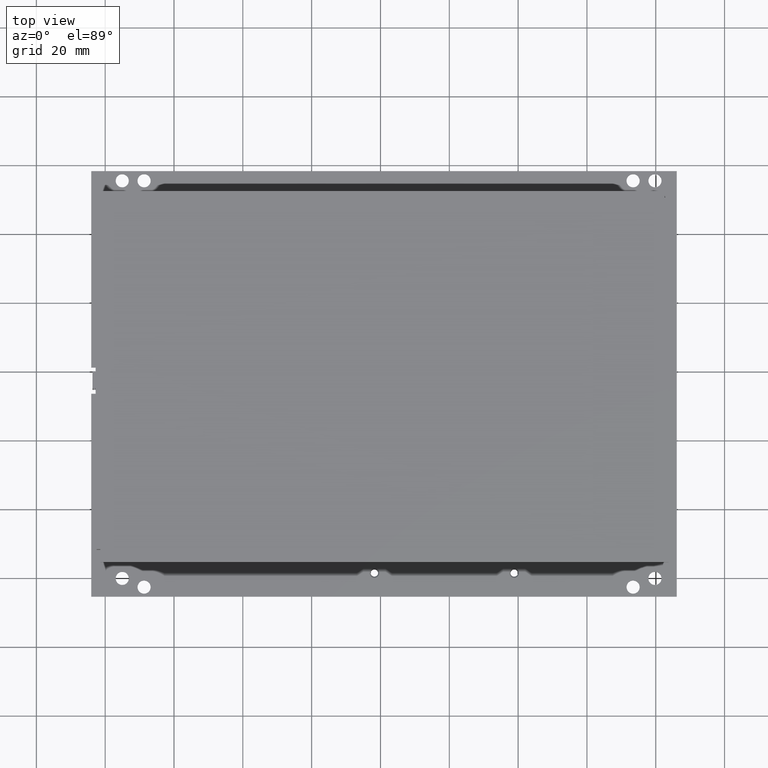
[diagram: clean part render]
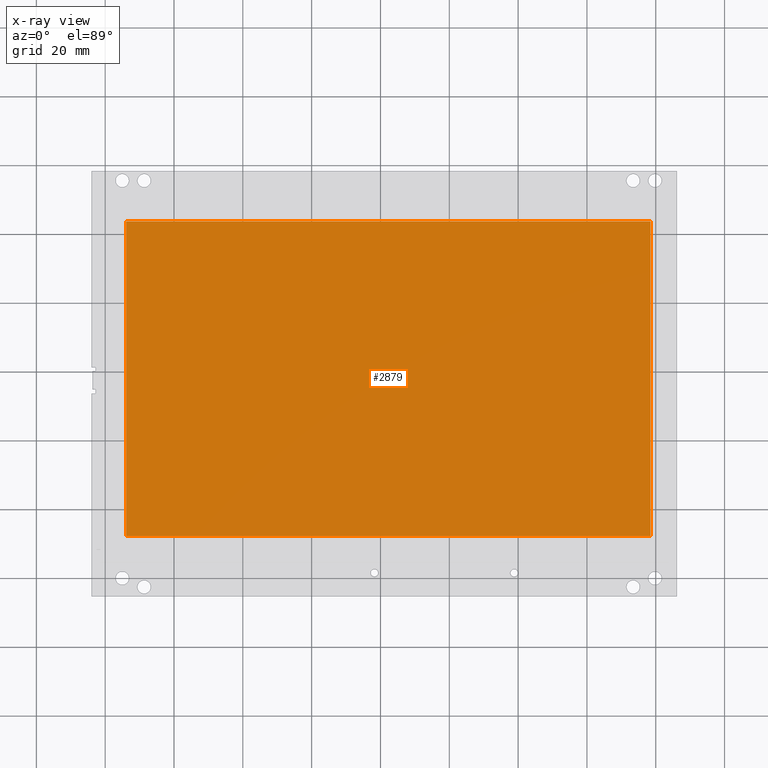
[diagram: x-ray — body ghosted, one internal face saturated and labeled with its STEP entity id]
A machine part, top view, then the same camera in x-ray: the body is ghosted and one INTERNAL B-rep face — a face not visible from any outside direction — is saturated and labeled: STEP entity #2879.
In plain terms, the highlighted planar face has unit normal (0, 0, -1).
Its self-contained STEP definition (entity closure, byte-faithful):
#2879 = ADVANCED_FACE ( 'NONE', ( #13977, #13973 ), #13978, .F. ) ;
#3662 = VECTOR ( 'NONE', #8752, 39.37007874015748100 ) ;
#3664 = VECTOR ( 'NONE', #8764, 39.37007874015748100 ) ;
#3941 = VECTOR ( 'NONE', #11907, 39.37007874015748100 ) ;
#3942 = VECTOR ( 'NONE', #11917, 39.37007874015748100 ) ;
#3959 = CIRCLE ( 'NONE', #3961, 0.004999999999999997500 ) ;
#3961 = AXIS2_PLACEMENT_3D ( 'NONE', #11922, #11923, #11925 ) ;
#4442 = CIRCLE ( 'NONE', #4445, 0.004999999999999997500 ) ;
#4445 = AXIS2_PLACEMENT_3D ( 'NONE', #8562, #8563, #8564 ) ;
#5762 = VERTEX_POINT ( 'NONE', #14822 ) ;
#5776 = VERTEX_POINT ( 'NONE', #14836 ) ;
#5841 = VERTEX_POINT ( 'NONE', #14901 ) ;
#5906 = VERTEX_POINT ( 'NONE', #14985 ) ;
#6283 = AXIS2_PLACEMENT_3D ( 'NONE', #13968, #13980, #13981 ) ;
#8562 = CARTESIAN_POINT ( 'NONE',  ( 0.09055118110236207200, -0.09842519685039480300, 0.4839370078740157200 ) ) ;
#8563 = DIRECTION ( 'NONE',  ( 0.0000000000000000000, 0.0000000000000000000, 1.000000000000000000 ) ) ;
#8564 = DIRECTION ( 'NONE',  ( 1.000000000000000000, 0.0000000000000000000, 0.0000000000000000000 ) ) ;
#8747 = LINE ( 'NONE', #8750, #3662 ) ;
#8750 = CARTESIAN_POINT ( 'NONE',  ( 3.090551181102362900, -1.898425196850394000, 0.4839370078740157200 ) ) ;
#8752 = DIRECTION ( 'NONE',  ( 0.0000000000000000000, 1.000000000000000000, 0.0000000000000000000 ) ) ;
#8759 = LINE ( 'NONE', #8762, #3664 ) ;
#8762 = CARTESIAN_POINT ( 'NONE',  ( -2.909448818897637500, -1.898425196850394000, 0.4839370078740157200 ) ) ;
#8764 = DIRECTION ( 'NONE',  ( 1.000000000000000000, 0.0000000000000000000, 0.0000000000000000000 ) ) ;
#9988 = CARTESIAN_POINT ( 'NONE',  ( 0.08555118110236206700, -0.09842519685039480300, 0.4839370078740157200 ) ) ;
#9990 = CARTESIAN_POINT ( 'NONE',  ( 0.09555118110236206200, -0.09842519685039480300, 0.4839370078740157200 ) ) ;
#11835 = EDGE_CURVE ( 'NONE', #12930, #12929, #4442, .T. ) ;
#11903 = LINE ( 'NONE', #11905, #3941 ) ;
#11905 = CARTESIAN_POINT ( 'NONE',  ( -2.909448818897637500, -1.898425196850394000, 0.4839370078740157200 ) ) ;
#11907 = DIRECTION ( 'NONE',  ( -0.0000000000000000000, -1.000000000000000000, -0.0000000000000000000 ) ) ;
#11913 = LINE ( 'NONE', #11915, #3942 ) ;
#11915 = CARTESIAN_POINT ( 'NONE',  ( -2.909448818897637500, 1.701574803149605900, 0.4839370078740157200 ) ) ;
#11917 = DIRECTION ( 'NONE',  ( -1.000000000000000000, -0.0000000000000000000, -0.0000000000000000000 ) ) ;
#11922 = CARTESIAN_POINT ( 'NONE',  ( 0.09055118110236207200, -0.09842519685039480300, 0.4839370078740157200 ) ) ;
#11923 = DIRECTION ( 'NONE',  ( 0.0000000000000000000, 0.0000000000000000000, 1.000000000000000000 ) ) ;
#11925 = DIRECTION ( 'NONE',  ( 1.000000000000000000, 0.0000000000000000000, 0.0000000000000000000 ) ) ;
#11952 = EDGE_CURVE ( 'NONE', #5841, #5776, #8747, .T. ) ;
#11957 = EDGE_CURVE ( 'NONE', #5762, #5841, #8759, .T. ) ;
#12929 = VERTEX_POINT ( 'NONE', #9990 ) ;
#12930 = VERTEX_POINT ( 'NONE', #9988 ) ;
#13968 = CARTESIAN_POINT ( 'NONE',  ( 3.090551181102360700, 1.701574803149605900, 0.4839370078740157200 ) ) ;
#13973 = FACE_OUTER_BOUND ( 'NONE', #16661, .T. ) ;
#13977 = FACE_BOUND ( 'NONE', #16662, .T. ) ;
#13978 = PLANE ( 'NONE',  #6283 ) ;
#13980 = DIRECTION ( 'NONE',  ( 0.0000000000000000000, 0.0000000000000000000, -1.000000000000000000 ) ) ;
#13981 = DIRECTION ( 'NONE',  ( -1.000000000000000000, 0.0000000000000000000, -0.0000000000000000000 ) ) ;
#14822 = CARTESIAN_POINT ( 'NONE',  ( -2.909448818897637500, -1.898425196850394000, 0.4839370078740157200 ) ) ;
#14836 = CARTESIAN_POINT ( 'NONE',  ( 3.090551181102362900, 1.701574803149605900, 0.4839370078740157200 ) ) ;
#14901 = CARTESIAN_POINT ( 'NONE',  ( 3.090551181102362900, -1.898425196850394000, 0.4839370078740157200 ) ) ;
#14985 = CARTESIAN_POINT ( 'NONE',  ( -2.909448818897637500, 1.701574803149605900, 0.4839370078740157200 ) ) ;
#16024 = ORIENTED_EDGE ( 'NONE', *, *, #16450, .T. ) ;
#16025 = ORIENTED_EDGE ( 'NONE', *, *, #16452, .T. ) ;
#16027 = ORIENTED_EDGE ( 'NONE', *, *, #11952, .T. ) ;
#16030 = ORIENTED_EDGE ( 'NONE', *, *, #16453, .F. ) ;
#16031 = ORIENTED_EDGE ( 'NONE', *, *, #11835, .F. ) ;
#16033 = ORIENTED_EDGE ( 'NONE', *, *, #11957, .T. ) ;
#16450 = EDGE_CURVE ( 'NONE', #5906, #5762, #11903, .T. ) ;
#16452 = EDGE_CURVE ( 'NONE', #5776, #5906, #11913, .T. ) ;
#16453 = EDGE_CURVE ( 'NONE', #12929, #12930, #3959, .T. ) ;
#16661 = EDGE_LOOP ( 'NONE', ( #16027, #16025, #16024, #16033 ) ) ;
#16662 = EDGE_LOOP ( 'NONE', ( #16030, #16031 ) ) ;